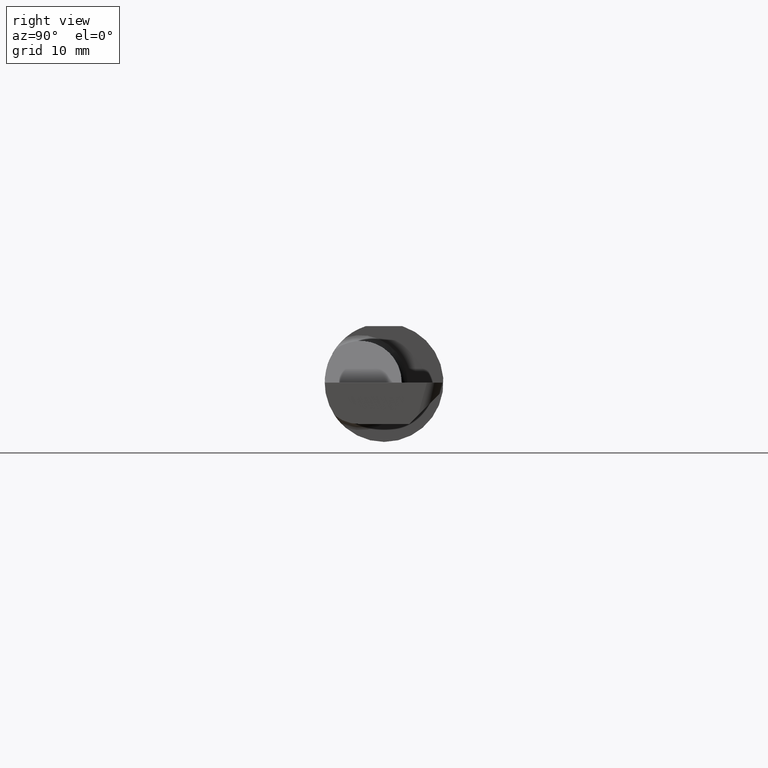
[diagram: clean part render]
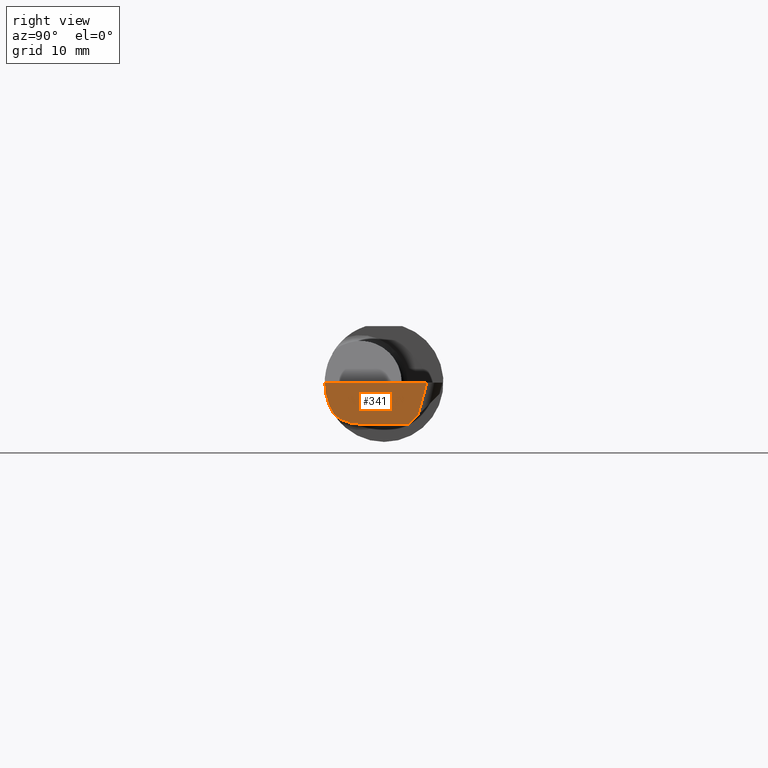
[diagram: same view with one face highlighted and labeled with its STEP entity id]
A machine part, right view. The second image highlights one B-rep face of the part: STEP entity #341.
In plain terms, the highlighted planar face has unit normal (-0.9992, 0.0349, 0.0175).
Its self-contained STEP definition (entity closure, byte-faithful):
#17 = PLANE ( 'NONE',  #23 ) ;
#23 = AXIS2_PLACEMENT_3D ( 'NONE', #404, #238, #24 ) ;
#24 = DIRECTION ( 'NONE',  ( -0.03489949670249505725, -0.9993908270190959842, 0.000000000000000000 ) ) ;
#41 = LINE ( 'NONE', #686, #281 ) ;
#51 = ORIENTED_EDGE ( 'NONE', *, *, #691, .F. ) ;
#59 = VERTEX_POINT ( 'NONE', #630 ) ;
#70 = CARTESIAN_POINT ( 'NONE',  ( 2.999898068948996244, 0.1800238777770215015, 0.000000000000000000 ) ) ;
#73 = DIRECTION ( 'NONE',  ( -0.03701744261649875939, -0.7066221440565400025, -0.7066221440565478851 ) ) ;
#74 = CARTESIAN_POINT ( 'NONE',  ( 2.984886542352623628, -0.2498499999999999888, 0.000000000000000000 ) ) ;
#110 = CARTESIAN_POINT ( 'NONE',  ( 2.987538890366190802, -0.08637003105099157196, -0.1750000000000000722 ) ) ;
#117 = VECTOR ( 'NONE', #190, 39.37007874015748854 ) ;
#134 = VERTEX_POINT ( 'NONE', #438 ) ;
#140 = CARTESIAN_POINT ( 'NONE',  ( 2.984591634083985756, -0.1771157075472506726, -0.1623092683844332140 ) ) ;
#146 = ORIENTED_EDGE ( 'NONE', *, *, #376, .F. ) ;
#166 = VERTEX_POINT ( 'NONE', #375 ) ;
#169 = EDGE_CURVE ( 'NONE', #432, #134, #379, .T. ) ;
#181 = VERTEX_POINT ( 'NONE', #427 ) ;
#190 = DIRECTION ( 'NONE',  ( 0.02590004391968258463, 0.2587322210431824421, 0.9656017944882975268 ) ) ;
#238 = DIRECTION ( 'NONE',  ( -0.9992386149554828290, 0.03489418134010775774, 0.01745240643728358798 ) ) ;
#240 = CARTESIAN_POINT ( 'NONE',  ( 2.983929579294953616, -0.2080850024789288599, -0.1382955322609668858 ) ) ;
#252 = ORIENTED_EDGE ( 'NONE', *, *, #385, .T. ) ;
#257 = ORIENTED_EDGE ( 'NONE', *, *, #169, .F. ) ;
#274 = VERTEX_POINT ( 'NONE', #70 ) ;
#281 = VECTOR ( 'NONE', #626, 39.37007874015748143 ) ;
#296 = CARTESIAN_POINT ( 'NONE',  ( 2.985664738015655129, -0.1400387324517229082, -0.1750000000000000999 ) ) ;
#311 = CARTESIAN_POINT ( 'NONE',  ( 2.994250465595685640, 0.1058243371481696615, -0.1750000000000001277 ) ) ;
#341 = ADVANCED_FACE ( 'NONE', ( #509 ), #17, .F. ) ;
#346 = EDGE_CURVE ( 'NONE', #181, #134, #592, .T. ) ;
#352 = CARTESIAN_POINT ( 'NONE',  ( 2.987033238708274752, -0.1008499999999999674, -0.1750000000000000722 ) ) ;
#375 = CARTESIAN_POINT ( 'NONE',  ( 2.984886542352623628, -0.2498499999999999888, 0.000000000000000000 ) ) ;
#376 = EDGE_CURVE ( 'NONE', #181, #166, #463, .T. ) ;
#379 = LINE ( 'NONE', #110, #604 ) ;
#385 = EDGE_CURVE ( 'NONE', #59, #274, #399, .T. ) ;
#399 = LINE ( 'NONE', #614, #117 ) ;
#404 = CARTESIAN_POINT ( 'NONE',  ( 2.999961557721757099, 0.1818419583544338969, 0.000000000000000000 ) ) ;
#427 = CARTESIAN_POINT ( 'NONE',  ( 2.983929579294953616, -0.2080850024789288599, -0.1382955322609668858 ) ) ;
#432 = VERTEX_POINT ( 'NONE', #311 ) ;
#438 = CARTESIAN_POINT ( 'NONE',  ( 2.987033238708274752, -0.1008499999999999674, -0.1750000000000000722 ) ) ;
#447 = CARTESIAN_POINT ( 'NONE',  ( 2.983929579294953616, -0.2080850024789288599, -0.1382955322609668858 ) ) ;
#458 = CARTESIAN_POINT ( 'NONE',  ( 2.983692505346974944, -0.2355204011147991883, -0.09701513151466779894 ) ) ;
#463 =( BOUNDED_CURVE ( )  B_SPLINE_CURVE ( 3, ( #240, #458, #560, #74 ),
 .UNSPECIFIED., .F., .T. ) 
 B_SPLINE_CURVE_WITH_KNOTS ( ( 4, 4 ),
 ( 6.160376845738953833, 6.746954780470613144 ),
 .UNSPECIFIED. ) 
 CURVE ( )  GEOMETRIC_REPRESENTATION_ITEM ( )  RATIONAL_B_SPLINE_CURVE ( ( 1.000000000000000000, 0.9715321379117536349, 0.9715321379117536349, 1.000000000000000000 ) ) 
 REPRESENTATION_ITEM ( '' )  );
#470 = EDGE_CURVE ( 'NONE', #274, #166, #41, .T. ) ;
#475 = ORIENTED_EDGE ( 'NONE', *, *, #470, .T. ) ;
#498 = EDGE_LOOP ( 'NONE', ( #51, #252, #475, #146, #625, #257 ) ) ;
#499 = CARTESIAN_POINT ( 'NONE',  ( 2.996893271351730004, 0.1562725836412660607, -0.1245517535069031456 ) ) ;
#509 = FACE_OUTER_BOUND ( 'NONE', #498, .T. ) ;
#532 = VECTOR ( 'NONE', #73, 39.37007874015748143 ) ;
#560 = CARTESIAN_POINT ( 'NONE',  ( 2.984020840019027343, -0.2498500000000000443, -0.04956584089959705647 ) ) ;
#592 =( BOUNDED_CURVE ( )  B_SPLINE_CURVE ( 3, ( #447, #140, #296, #352 ),
 .UNSPECIFIED., .F., .T. ) 
 B_SPLINE_CURVE_WITH_KNOTS ( ( 4, 4 ),
 ( 0.4474640105399665946, 1.107026853503871866 ),
 .UNSPECIFIED. ) 
 CURVE ( )  GEOMETRIC_REPRESENTATION_ITEM ( )  RATIONAL_B_SPLINE_CURVE ( ( 1.000000000000000000, 0.9640754331822831702, 0.9640754331822831702, 1.000000000000000000 ) ) 
 REPRESENTATION_ITEM ( '' )  );
#604 = VECTOR ( 'NONE', #664, 39.37007874015748854 ) ;
#614 = CARTESIAN_POINT ( 'NONE',  ( 2.999910294815772982, 0.1801460098349874084, 0.0004558030455618249425 ) ) ;
#625 = ORIENTED_EDGE ( 'NONE', *, *, #346, .T. ) ;
#626 = DIRECTION ( 'NONE',  ( -0.03489949670249506419, -0.9993908270190959842, 0.000000000000000000 ) ) ;
#630 = CARTESIAN_POINT ( 'NONE',  ( 2.996204691241262985, 0.1431283489340401394, -0.1376959882141292058 ) ) ;
#664 = DIRECTION ( 'NONE',  ( -0.03489949670249505725, -0.9993908270190959842, 1.222058880457094394E-16 ) ) ;
#674 = LINE ( 'NONE', #499, #532 ) ;
#686 = CARTESIAN_POINT ( 'NONE',  ( 2.999961557721757099, 0.1818419583544338969, 0.000000000000000000 ) ) ;
#691 = EDGE_CURVE ( 'NONE', #59, #432, #674, .T. ) ;